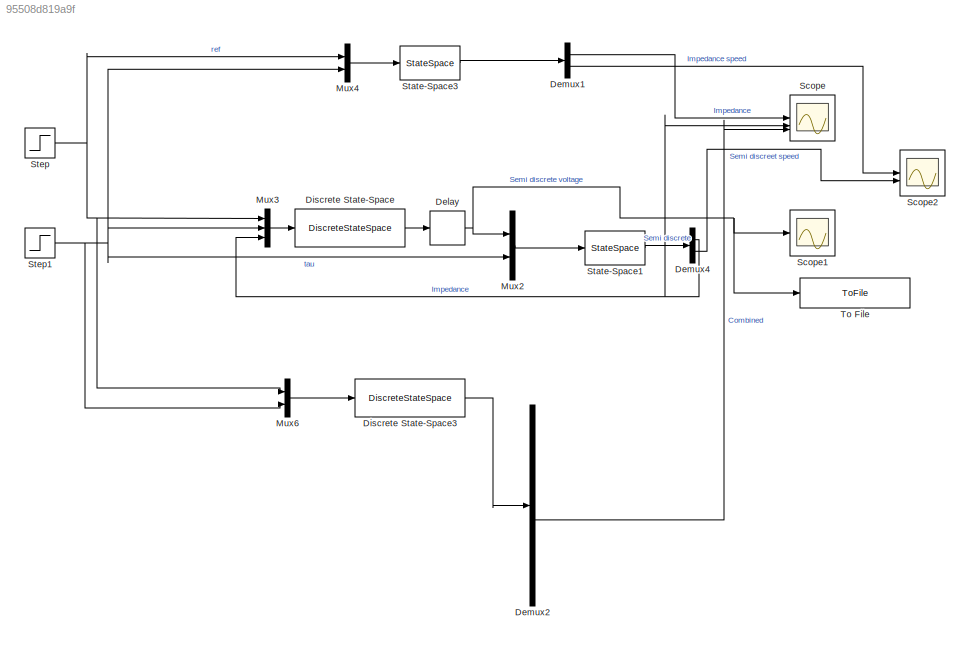
MODEL slx_95508d819a9f
KIND model
CONFIG AbsTol = auto
CONFIG EnableMultiTasking = off
CONFIG FixedStep = auto
CONFIG MaxStep = auto
CONFIG MinStep = auto
CONFIG RelTol = 1e-3
CONFIG SampleTimeConstraint = Unconstrained
CONFIG SolverName = VariableStepAuto
CONFIG StartTime = 0.0
CONFIG StopTime = 7
BLOCK [Delay] Delay
  DelayLength = 1
  InitialCondition = 0
  InputPortMap = u0
BLOCK [Demux] Demux1
  Outputs = 2
BLOCK [Demux] Demux2
  Outputs = 6
BLOCK [Demux] Demux4
  Outputs = 2
BLOCK [DiscreteStateSpace] Discrete State-Space
  A = Adtilde
  B = Bdtilde
  C = Cdtilde
  D = Ddtilde
  InitialCondition = nutildei
  SampleTime = t_d
BLOCK [DiscreteStateSpace] Discrete State-Space3
  A = AAd
  B = zeros([6, 2])
  C = eye(6)
  D = zeros([6, 2])
  InitialCondition = [zeros(3, 1); xi; ei]
  SampleTime = t_d
BLOCK [Mux] Mux2
  DisplayOption = bar
  Inputs = 2
BLOCK [Mux] Mux3
  DisplayOption = bar
  Inputs = 3
BLOCK [Mux] Mux4
  DisplayOption = bar
  Inputs = 2
BLOCK [Mux] Mux6
  DisplayOption = bar
  Inputs = 2
BLOCK [Scope] Scope
  Floating = off
  NumInputPorts = 4
  ScopeSpecificationString = Simulink.scopes.TimeScopeBlockCfg('CurrentConfiguration', extmgr.ConfigurationSet(extmgr.Configuration('Core','General UI',true),extmgr.Configuration('Core','Source UI',true),extmgr.Configuration('Sources','WiredSimulink',true,'DataLoggingVariableName','ScopeData1'),extmgr.Configuration('Visuals','Time Domain',true,'SerializedDisplays',{struct('MinYLimReal','-0.57648','MaxYLimReal','5.18836','YLab...<+1610ch>
BLOCK [Scope] Scope1
  Floating = off
  NumInputPorts = 4
  ScopeSpecificationString = Simulink.scopes.TimeScopeBlockCfg('CurrentConfiguration', extmgr.ConfigurationSet(extmgr.Configuration('Core','General UI',true),extmgr.Configuration('Core','Source UI',true),extmgr.Configuration('Sources','WiredSimulink',true,'DataLoggingVariableName','ScopeData1'),extmgr.Configuration('Visuals','Time Domain',true,'SerializedDisplays',{struct('MinYLimReal','-0.01807','MaxYLimReal','0.16267','YLab...<+1623ch>
BLOCK [Scope] Scope2
  Floating = off
  NumInputPorts = 4
  ScopeSpecificationString = Simulink.scopes.TimeScopeBlockCfg('CurrentConfiguration', extmgr.ConfigurationSet(extmgr.Configuration('Core','General UI',true),extmgr.Configuration('Core','Source UI',true),extmgr.Configuration('Sources','WiredSimulink',true,'DataLoggingVariableName','ScopeData1'),extmgr.Configuration('Visuals','Time Domain',true,'SerializedDisplays',{struct('MinYLimReal','-5.1413','MaxYLimReal','46.27167','YLab...<+1629ch>
BLOCK [StateSpace] State-Space1
  A = A
  B = B
  C = eye(2)
  D = zeros(2)
  InitialCondition = xi
BLOCK [StateSpace] State-Space3
  A = Aimp
  B = Bimp
  C = Cimp
  D = Dimp
  InitialCondition = xi
BLOCK [Step] Step
  After = 2.99*4.4
  SampleTime = 0
  Time = 0
BLOCK [Step] Step1
  After = 0
  SampleTime = 0
  Time = 0
BLOCK [ToFile] To File
  Filename = control_voltage_sim.mat
  MatrixName = control_voltage_sim
  SaveFormat = Timeseries
NET Delay:1 -> Mux2:1, Scope1:1, To File:1
LINE Demux1:1 -> Scope:1
LINE Demux1:2 -> Scope2:1
LINE Demux2:4 -> Scope:3
NET Demux4:1 -> Mux3:3, Scope:2
LINE Demux4:2 -> Scope2:2
LINE Discrete State-Space3:1 -> Demux2:1
LINE Discrete State-Space:1 -> Delay:1
LINE Mux2:1 -> State-Space1:1
LINE Mux3:1 -> Discrete State-Space:1
LINE Mux4:1 -> State-Space3:1
LINE Mux6:1 -> Discrete State-Space3:1
LINE State-Space1:1 -> Demux4:1
LINE State-Space3:1 -> Demux1:1
NET Step1:1 -> Mux2:2, Mux3:2, Mux4:2, Mux6:2
NET Step:1 -> Mux3:1, Mux4:1, Mux6:1
note: NET lines group one-source signal fan-out (src -> all destinations, sorted); 1:1 wires keep LINE
